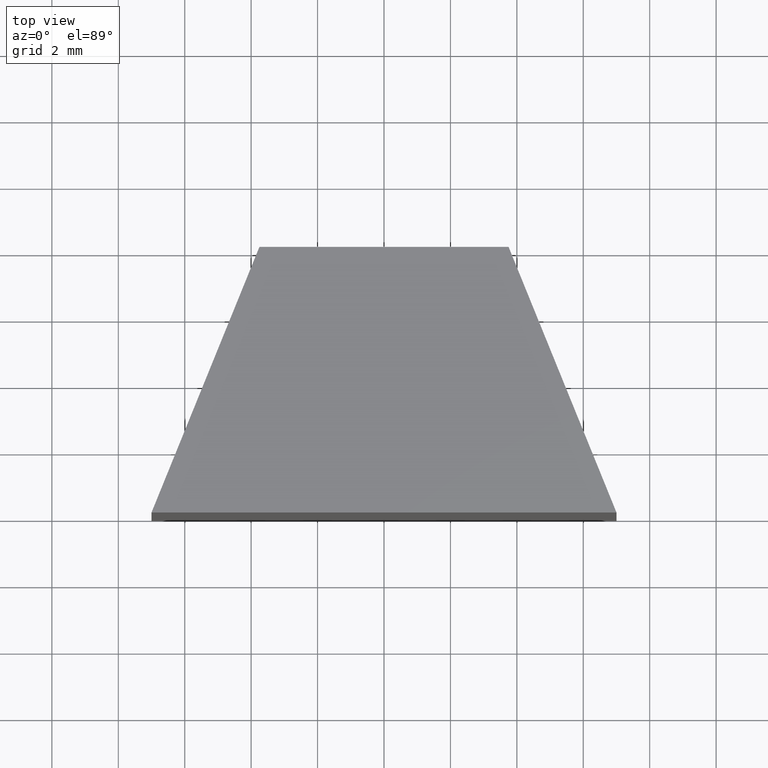
[diagram: clean part render]
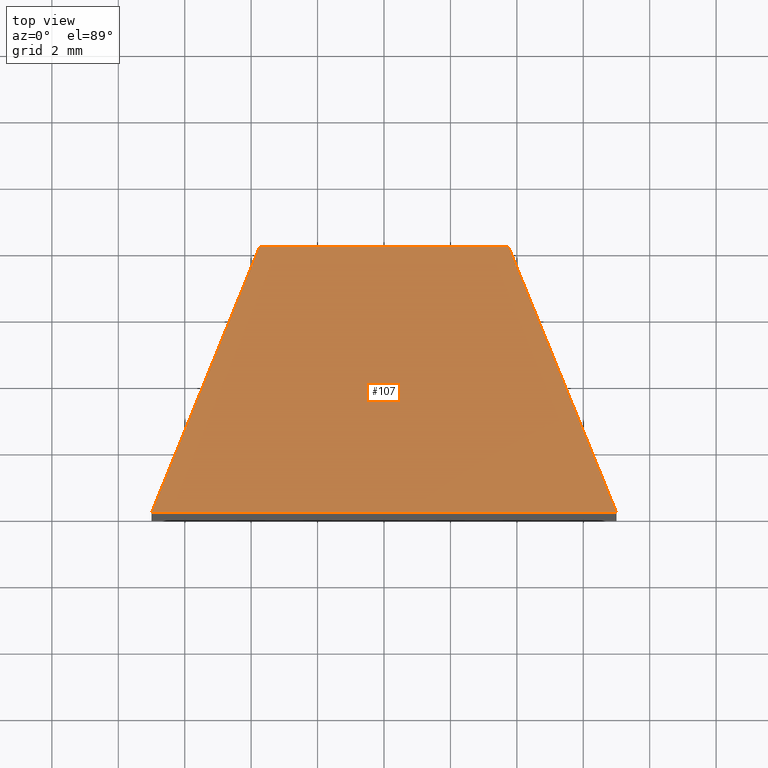
[diagram: same view with one face highlighted and labeled with its STEP entity id]
A machine part, top view. The second image highlights one B-rep face of the part: STEP entity #107.
In plain terms, the highlighted planar face has unit normal (0, 0, 1).
Its self-contained STEP definition (entity closure, byte-faithful):
#21=FACE_OUTER_BOUND('',#27,.T.);
#27=EDGE_LOOP('',(#92,#93,#94,#95));
#32=LINE('',#176,#44);
#35=LINE('',#181,#47);
#37=LINE('',#185,#49);
#39=LINE('',#188,#51);
#44=VECTOR('',#147,10.);
#47=VECTOR('',#152,10.);
#49=VECTOR('',#156,10.);
#51=VECTOR('',#160,10.);
#56=VERTEX_POINT('',#174);
#57=VERTEX_POINT('',#175);
#58=VERTEX_POINT('',#180);
#59=VERTEX_POINT('',#184);
#64=EDGE_CURVE('',#56,#57,#32,.T.);
#67=EDGE_CURVE('',#57,#58,#35,.T.);
#69=EDGE_CURVE('',#58,#59,#37,.T.);
#71=EDGE_CURVE('',#59,#56,#39,.T.);
#92=ORIENTED_EDGE('',*,*,#64,.F.);
#93=ORIENTED_EDGE('',*,*,#71,.F.);
#94=ORIENTED_EDGE('',*,*,#69,.F.);
#95=ORIENTED_EDGE('',*,*,#67,.F.);
#101=PLANE('',#136);
#107=ADVANCED_FACE('',(#21),#101,.T.);
#136=AXIS2_PLACEMENT_3D('',#189,#161,#162);
#147=DIRECTION('',(0.376377046955938,0.926466577122309,0.));
#152=DIRECTION('',(1.,0.,0.));
#156=DIRECTION('',(0.376377046955938,-0.926466577122309,0.));
#160=DIRECTION('',(-1.,0.,0.));
#161=DIRECTION('center_axis',(0.,0.,1.));
#162=DIRECTION('ref_axis',(1.,0.,0.));
#174=CARTESIAN_POINT('',(-7.,0.,7.5));
#175=CARTESIAN_POINT('',(-3.75,8.,7.5));
#176=CARTESIAN_POINT('',(-3.75,8.,7.5));
#180=CARTESIAN_POINT('',(3.75,8.,7.5));
#181=CARTESIAN_POINT('',(3.75,8.,7.5));
#184=CARTESIAN_POINT('',(7.,0.,7.5));
#185=CARTESIAN_POINT('',(7.,0.,7.5));
#188=CARTESIAN_POINT('',(-7.,0.,7.5));
#189=CARTESIAN_POINT('Origin',(1.38777878078145E-16,3.32937693303923,7.5));